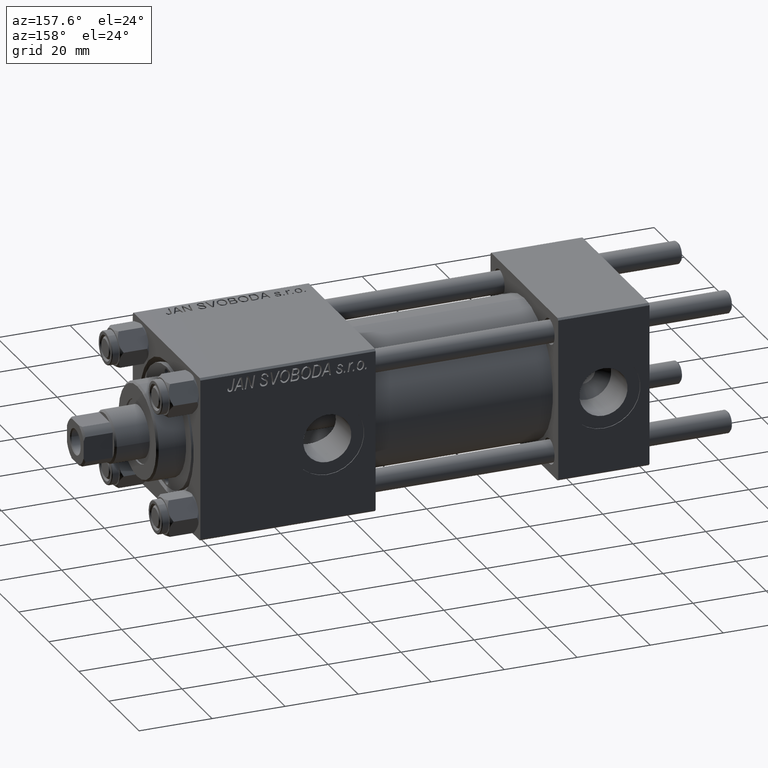
[diagram: clean part render]
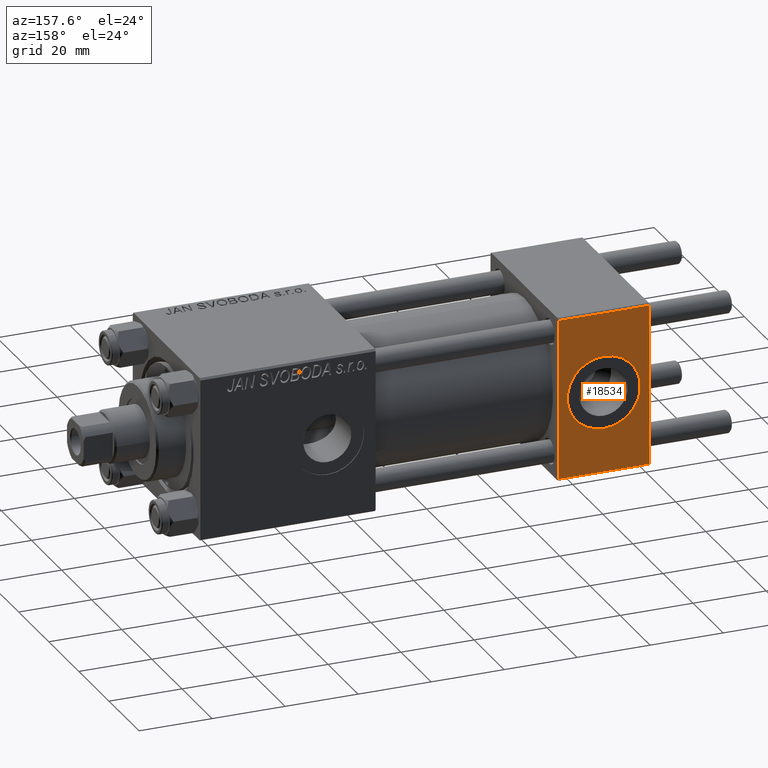
[diagram: same view with one face highlighted and labeled with its STEP entity id]
A machine part, auxiliary view. The second image highlights one B-rep face of the part: STEP entity #18534.
In plain terms, the highlighted planar face has unit normal (0, 1, 0).
Its self-contained STEP definition (entity closure, byte-faithful):
#784 = CARTESIAN_POINT ( 'NONE',  ( 25.00000000000000000, 22.50000000000000000, 21.99999999999999645 ) ) ;
#2702 = VERTEX_POINT ( 'NONE', #47564 ) ;
#4787 = EDGE_CURVE ( 'NONE', #41657, #40967, #8004, .T. ) ;
#5518 = DIRECTION ( 'NONE',  ( 0.000000000000000000, 0.000000000000000000, 1.000000000000000000 ) ) ;
#5827 = ORIENTED_EDGE ( 'NONE', *, *, #29630, .T. ) ;
#6146 = EDGE_CURVE ( 'NONE', #36378, #2702, #37318, .T. ) ;
#6695 = VERTEX_POINT ( 'NONE', #37191 ) ;
#6973 = CARTESIAN_POINT ( 'NONE',  ( 0.000000000000000000, 22.50000000000000000, 22.50000000000000355 ) ) ;
#8004 = LINE ( 'NONE', #31689, #45114 ) ;
#9081 = VECTOR ( 'NONE', #49414, 1000.000000000000000 ) ;
#10775 = DIRECTION ( 'NONE',  ( 0.000000000000000000, 0.000000000000000000, 1.000000000000000000 ) ) ;
#11052 = ORIENTED_EDGE ( 'NONE', *, *, #46608, .F. ) ;
#12440 = FACE_OUTER_BOUND ( 'NONE', #26584, .T. ) ;
#13006 = VECTOR ( 'NONE', #47790, 1000.000000000000000 ) ;
#13474 = CIRCLE ( 'NONE', #26063, 9.999999999999996447 ) ;
#14330 = AXIS2_PLACEMENT_3D ( 'NONE', #30768, #22635, #10775 ) ;
#16016 = VECTOR ( 'NONE', #29876, 1000.000000000000000 ) ;
#16134 = FACE_BOUND ( 'NONE', #49160, .T. ) ;
#16846 = DIRECTION ( 'NONE',  ( 0.000000000000000000, 1.000000000000000000, 0.000000000000000000 ) ) ;
#18305 = ORIENTED_EDGE ( 'NONE', *, *, #4787, .T. ) ;
#18534 = ADVANCED_FACE ( 'NONE', ( #16134, #12440 ), #31908, .T. ) ;
#20073 = DIRECTION ( 'NONE',  ( 0.000000000000000000, -0.000000000000000000, 1.000000000000000000 ) ) ;
#20144 = CARTESIAN_POINT ( 'NONE',  ( 0.000000000000000000, 22.50000000000000000, 21.99999999999999645 ) ) ;
#20429 = ORIENTED_EDGE ( 'NONE', *, *, #48407, .F. ) ;
#21566 = CARTESIAN_POINT ( 'NONE',  ( 12.50000000000000000, 22.50000000000000000, 0.000000000000000000 ) ) ;
#22290 = VERTEX_POINT ( 'NONE', #51770 ) ;
#22635 = DIRECTION ( 'NONE',  ( 0.000000000000000000, 1.000000000000000000, 0.000000000000000000 ) ) ;
#26063 = AXIS2_PLACEMENT_3D ( 'NONE', #21566, #16846, #5518 ) ;
#26584 = EDGE_LOOP ( 'NONE', ( #5827, #18305, #43073, #29587 ) ) ;
#26966 = LINE ( 'NONE', #6973, #16016 ) ;
#29587 = ORIENTED_EDGE ( 'NONE', *, *, #6146, .T. ) ;
#29630 = EDGE_CURVE ( 'NONE', #2702, #41657, #31256, .T. ) ;
#29876 = DIRECTION ( 'NONE',  ( 0.000000000000000000, 0.000000000000000000, -1.000000000000000000 ) ) ;
#30768 = CARTESIAN_POINT ( 'NONE',  ( 12.50000000000000000, 22.50000000000000000, 0.000000000000000000 ) ) ;
#31256 = LINE ( 'NONE', #47284, #13006 ) ;
#31689 = CARTESIAN_POINT ( 'NONE',  ( 25.00000000000000000, 22.50000000000000000, -21.99999999999998224 ) ) ;
#31908 = PLANE ( 'NONE',  #43777 ) ;
#32169 = DIRECTION ( 'NONE',  ( -0.000000000000000000, 1.000000000000000000, 0.000000000000000000 ) ) ;
#35337 = CARTESIAN_POINT ( 'NONE',  ( 25.00000000000000000, 22.50000000000000000, 22.50000000000000355 ) ) ;
#36378 = VERTEX_POINT ( 'NONE', #20144 ) ;
#36994 = CIRCLE ( 'NONE', #14330, 9.999999999999996447 ) ;
#37191 = CARTESIAN_POINT ( 'NONE',  ( 12.50000000000000178, 22.50000000000000000, -9.999999999999996447 ) ) ;
#37318 = LINE ( 'NONE', #784, #9081 ) ;
#37458 = CARTESIAN_POINT ( 'NONE',  ( 25.00000000000000000, 22.50000000000000000, -21.99999999999996803 ) ) ;
#40967 = VERTEX_POINT ( 'NONE', #51568 ) ;
#41657 = VERTEX_POINT ( 'NONE', #37458 ) ;
#43073 = ORIENTED_EDGE ( 'NONE', *, *, #50785, .F. ) ;
#43777 = AXIS2_PLACEMENT_3D ( 'NONE', #35337, #32169, #20073 ) ;
#44534 = DIRECTION ( 'NONE',  ( -1.000000000000000000, 0.000000000000000000, 0.000000000000000000 ) ) ;
#45114 = VECTOR ( 'NONE', #44534, 1000.000000000000000 ) ;
#46608 = EDGE_CURVE ( 'NONE', #6695, #22290, #13474, .T. ) ;
#47284 = CARTESIAN_POINT ( 'NONE',  ( 25.00000000000000000, 22.50000000000000000, 22.50000000000000355 ) ) ;
#47564 = CARTESIAN_POINT ( 'NONE',  ( 25.00000000000000000, 22.50000000000000000, 21.99999999999999645 ) ) ;
#47790 = DIRECTION ( 'NONE',  ( 0.000000000000000000, 0.000000000000000000, -1.000000000000000000 ) ) ;
#48407 = EDGE_CURVE ( 'NONE', #22290, #6695, #36994, .T. ) ;
#49160 = EDGE_LOOP ( 'NONE', ( #20429, #11052 ) ) ;
#49414 = DIRECTION ( 'NONE',  ( 1.000000000000000000, 0.000000000000000000, 0.000000000000000000 ) ) ;
#50785 = EDGE_CURVE ( 'NONE', #36378, #40967, #26966, .T. ) ;
#51568 = CARTESIAN_POINT ( 'NONE',  ( 0.000000000000000000, 22.50000000000000000, -21.99999999999996803 ) ) ;
#51770 = CARTESIAN_POINT ( 'NONE',  ( 12.50000000000000000, 22.50000000000000000, 9.999999999999996447 ) ) ;